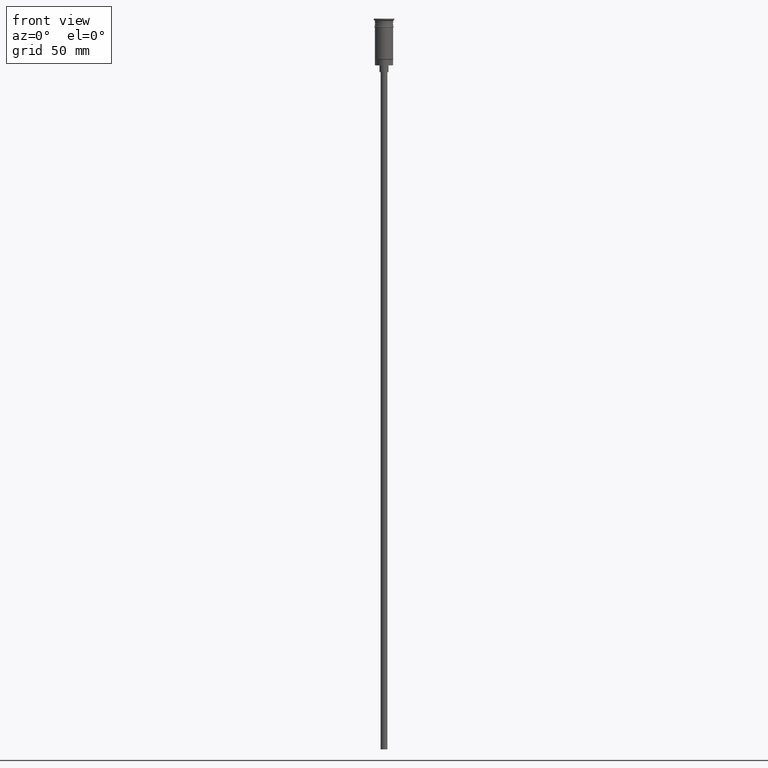
[diagram: clean part render]
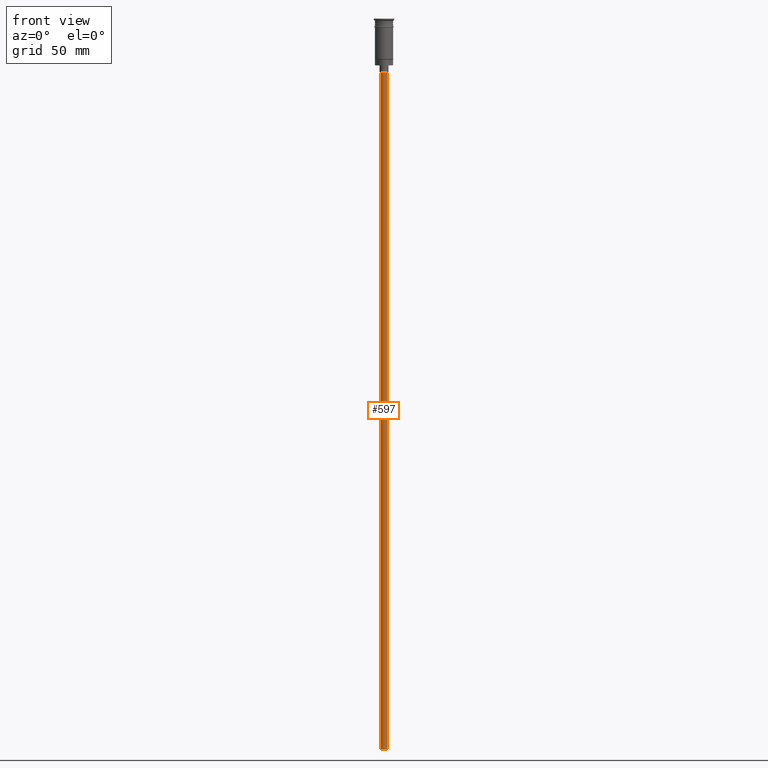
[diagram: same view with one face highlighted and labeled with its STEP entity id]
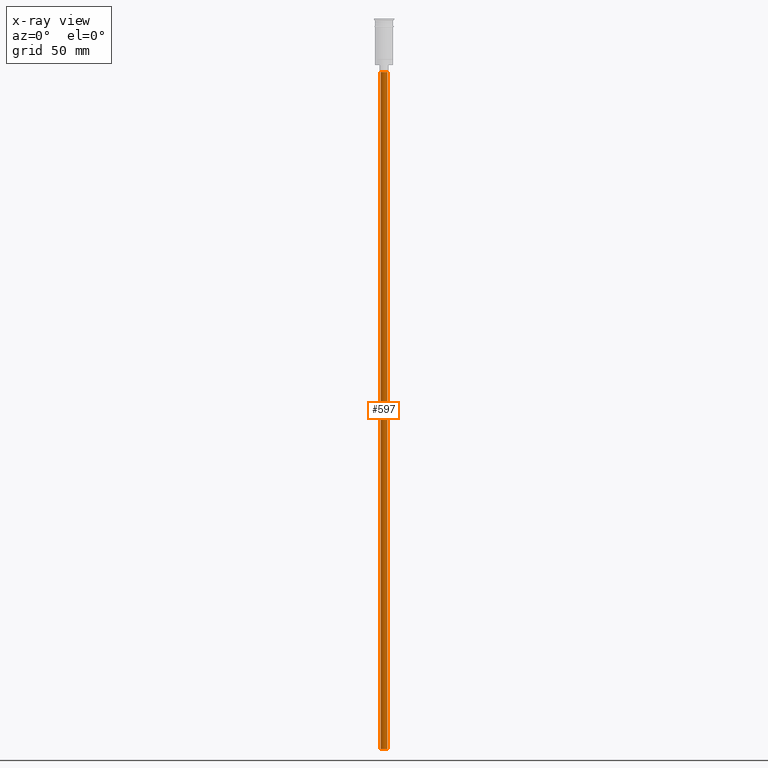
[diagram: x-ray of the same camera — body ghosted, the highlighted face saturated]
A machine part, front view. The second image highlights one B-rep face of the part: STEP entity #597.
The next image is the same camera in x-ray: the body ghosted, the highlighted face saturated — about 0% of this face is hidden behind the body in this view.
In plain terms, the highlighted cylindrical surface (edge-blend (fillet) strip) has radius 1.5 mm, axis along (-0, -0, 1).
Its self-contained STEP definition (entity closure, byte-faithful):
#15 = EDGE_CURVE ( 'NONE', #170, #645, #1332, .T. ) ;
#32 = DIRECTION ( 'NONE',  ( 0.000000000000000000, 0.000000000000000000, -1.000000000000000000 ) ) ;
#108 = VERTEX_POINT ( 'NONE', #328 ) ;
#170 = VERTEX_POINT ( 'NONE', #420 ) ;
#241 = DIRECTION ( 'NONE',  ( 1.000000000000000000, 0.000000000000000000, 0.000000000000000000 ) ) ;
#248 = ORIENTED_EDGE ( 'NONE', *, *, #1222, .F. ) ;
#289 = LINE ( 'NONE', #809, #1195 ) ;
#328 = CARTESIAN_POINT ( 'NONE',  ( -1.500000000000000222, 1.836970198721030181E-16, -320.5000000000000000 ) ) ;
#334 = CARTESIAN_POINT ( 'NONE',  ( 0.000000000000000000, 0.000000000000000000, -320.5000000000000000 ) ) ;
#420 = CARTESIAN_POINT ( 'NONE',  ( 1.500000000000000222, 0.000000000000000000, -23.49999999999999645 ) ) ;
#454 = AXIS2_PLACEMENT_3D ( 'NONE', #513, #637, #241 ) ;
#496 = ORIENTED_EDGE ( 'NONE', *, *, #1167, .T. ) ;
#513 = CARTESIAN_POINT ( 'NONE',  ( 0.000000000000000000, 0.000000000000000000, -320.5000000000000000 ) ) ;
#580 = LINE ( 'NONE', #1209, #1136 ) ;
#597 = ADVANCED_FACE ( 'NONE', ( #1479 ), #1599, .T. ) ;
#635 = VERTEX_POINT ( 'NONE', #826 ) ;
#637 = DIRECTION ( 'NONE',  ( -0.000000000000000000, -0.000000000000000000, 1.000000000000000000 ) ) ;
#645 = VERTEX_POINT ( 'NONE', #813 ) ;
#659 = AXIS2_PLACEMENT_3D ( 'NONE', #334, #832, #1076 ) ;
#684 = DIRECTION ( 'NONE',  ( -1.000000000000000000, 0.000000000000000000, 0.000000000000000000 ) ) ;
#694 = DIRECTION ( 'NONE',  ( -0.000000000000000000, -0.000000000000000000, 1.000000000000000000 ) ) ;
#809 = CARTESIAN_POINT ( 'NONE',  ( -1.500000000000000222, 1.836970198721030181E-16, -320.5000000000000000 ) ) ;
#813 = CARTESIAN_POINT ( 'NONE',  ( -1.500000000000000222, 1.836970198721030181E-16, -23.49999999999999645 ) ) ;
#826 = CARTESIAN_POINT ( 'NONE',  ( 1.500000000000000222, 0.000000000000000000, -320.5000000000000000 ) ) ;
#832 = DIRECTION ( 'NONE',  ( 0.000000000000000000, 0.000000000000000000, -1.000000000000000000 ) ) ;
#861 = ORIENTED_EDGE ( 'NONE', *, *, #15, .T. ) ;
#890 = CIRCLE ( 'NONE', #659, 1.500000000000000222 ) ;
#1043 = ORIENTED_EDGE ( 'NONE', *, *, #1549, .F. ) ;
#1069 = DIRECTION ( 'NONE',  ( -0.000000000000000000, -0.000000000000000000, 1.000000000000000000 ) ) ;
#1076 = DIRECTION ( 'NONE',  ( -1.000000000000000000, 0.000000000000000000, 0.000000000000000000 ) ) ;
#1136 = VECTOR ( 'NONE', #1069, 1000.000000000000000 ) ;
#1146 = CARTESIAN_POINT ( 'NONE',  ( 0.000000000000000000, 0.000000000000000000, -23.49999999999999645 ) ) ;
#1167 = EDGE_CURVE ( 'NONE', #635, #170, #580, .T. ) ;
#1195 = VECTOR ( 'NONE', #694, 1000.000000000000000 ) ;
#1209 = CARTESIAN_POINT ( 'NONE',  ( 1.500000000000000222, 0.000000000000000000, -320.5000000000000000 ) ) ;
#1222 = EDGE_CURVE ( 'NONE', #635, #108, #890, .T. ) ;
#1332 = CIRCLE ( 'NONE', #1533, 1.500000000000000222 ) ;
#1348 = EDGE_LOOP ( 'NONE', ( #1043, #248, #496, #861 ) ) ;
#1479 = FACE_OUTER_BOUND ( 'NONE', #1348, .T. ) ;
#1533 = AXIS2_PLACEMENT_3D ( 'NONE', #1146, #32, #684 ) ;
#1549 = EDGE_CURVE ( 'NONE', #108, #645, #289, .T. ) ;
#1599 = CYLINDRICAL_SURFACE ( 'NONE', #454, 1.500000000000000222 ) ;